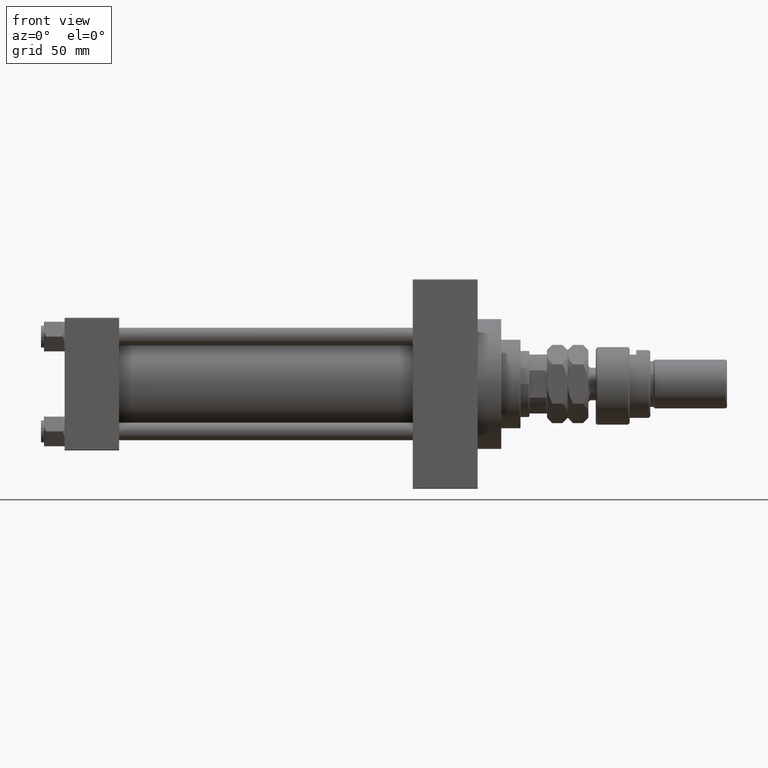
[diagram: clean part render]
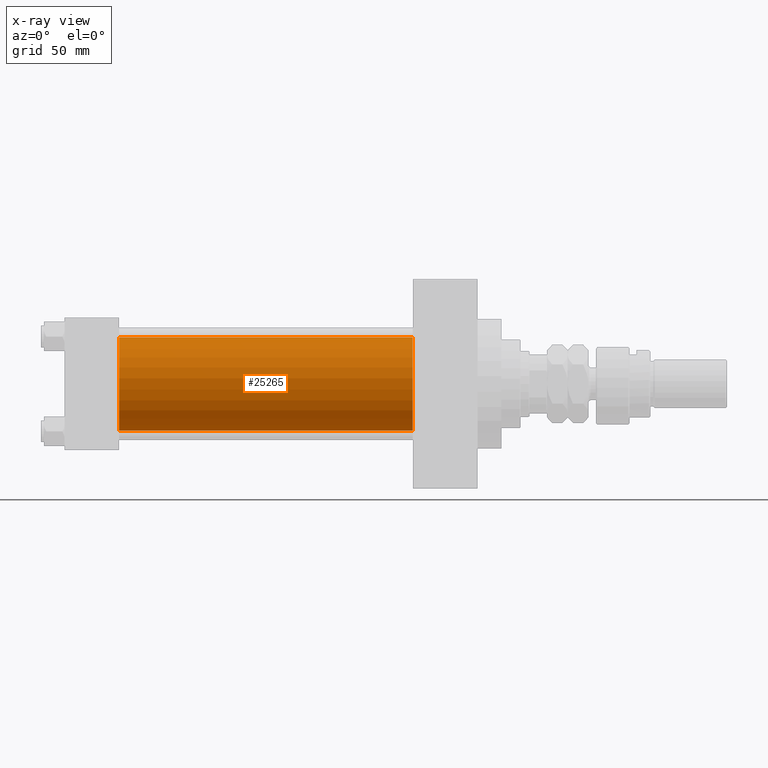
[diagram: x-ray — body ghosted, one internal face saturated and labeled with its STEP entity id]
A machine part, front view, then the same camera in x-ray: the body is ghosted and one INTERNAL B-rep face — a face not visible from any outside direction — is saturated and labeled: STEP entity #25265.
In plain terms, the highlighted cylindrical surface (partial cylindrical patch) has radius 31.5 mm, axis along (-1, -0, -0).
Its self-contained STEP definition (entity closure, byte-faithful):
#1260 = EDGE_LOOP ( 'NONE', ( #32473, #31428, #38758, #24523 ) ) ;
#2964 = CARTESIAN_POINT ( 'NONE',  ( 37.00000000000000000, -2.602085213965210642E-15, 0.000000000000000000 ) ) ;
#3073 = EDGE_CURVE ( 'NONE', #37259, #35841, #28065, .T. ) ;
#7121 = VECTOR ( 'NONE', #9968, 1000.000000000000000 ) ;
#7414 = CARTESIAN_POINT ( 'NONE',  ( 236.0000000000000284, 1.255552203348951850E-15, -31.50000000000000000 ) ) ;
#9712 = FACE_OUTER_BOUND ( 'NONE', #1260, .T. ) ;
#9968 = DIRECTION ( 'NONE',  ( -1.000000000000000000, -0.000000000000000000, -0.000000000000000000 ) ) ;
#10738 = VECTOR ( 'NONE', #24358, 1000.000000000000000 ) ;
#11798 = AXIS2_PLACEMENT_3D ( 'NONE', #25804, #42672, #21843 ) ;
#14350 = DIRECTION ( 'NONE',  ( 0.000000000000000000, 0.000000000000000000, -1.000000000000000000 ) ) ;
#16183 = CARTESIAN_POINT ( 'NONE',  ( 236.0000000000000284, 1.255552203348951850E-15, -31.50000000000000000 ) ) ;
#18403 = CYLINDRICAL_SURFACE ( 'NONE', #11798, 31.50000000000000000 ) ;
#19752 = AXIS2_PLACEMENT_3D ( 'NONE', #2964, #27262, #14350 ) ;
#21317 = VERTEX_POINT ( 'NONE', #23905 ) ;
#21843 = DIRECTION ( 'NONE',  ( 0.000000000000000000, 0.000000000000000000, 1.000000000000000000 ) ) ;
#23905 = CARTESIAN_POINT ( 'NONE',  ( 236.0000000000000284, -2.602085213965210642E-15, 31.50000000000000000 ) ) ;
#24358 = DIRECTION ( 'NONE',  ( -1.000000000000000000, -0.000000000000000000, -0.000000000000000000 ) ) ;
#24523 = ORIENTED_EDGE ( 'NONE', *, *, #39009, .F. ) ;
#25265 = ADVANCED_FACE ( 'NONE', ( #9712 ), #18403, .F. ) ;
#25804 = CARTESIAN_POINT ( 'NONE',  ( 236.0000000000000284, -2.602085213965210642E-15, 0.000000000000000000 ) ) ;
#27262 = DIRECTION ( 'NONE',  ( 1.000000000000000000, 0.000000000000000000, 0.000000000000000000 ) ) ;
#28065 = LINE ( 'NONE', #16183, #10738 ) ;
#30285 = CARTESIAN_POINT ( 'NONE',  ( 236.0000000000000284, -2.602085213965210642E-15, 31.50000000000000000 ) ) ;
#31428 = ORIENTED_EDGE ( 'NONE', *, *, #3073, .T. ) ;
#32473 = ORIENTED_EDGE ( 'NONE', *, *, #50842, .T. ) ;
#32582 = VERTEX_POINT ( 'NONE', #41209 ) ;
#35223 = EDGE_CURVE ( 'NONE', #32582, #35841, #48377, .T. ) ;
#35841 = VERTEX_POINT ( 'NONE', #48153 ) ;
#37259 = VERTEX_POINT ( 'NONE', #7414 ) ;
#38758 = ORIENTED_EDGE ( 'NONE', *, *, #35223, .F. ) ;
#38964 = CARTESIAN_POINT ( 'NONE',  ( 236.0000000000000284, -2.602085213965210642E-15, 0.000000000000000000 ) ) ;
#39009 = EDGE_CURVE ( 'NONE', #21317, #32582, #41375, .T. ) ;
#39493 = DIRECTION ( 'NONE',  ( 0.000000000000000000, 0.000000000000000000, -1.000000000000000000 ) ) ;
#41209 = CARTESIAN_POINT ( 'NONE',  ( 37.00000000000000000, -2.602085213965210642E-15, 31.50000000000000000 ) ) ;
#41375 = LINE ( 'NONE', #30285, #7121 ) ;
#42664 = DIRECTION ( 'NONE',  ( 1.000000000000000000, 0.000000000000000000, 0.000000000000000000 ) ) ;
#42672 = DIRECTION ( 'NONE',  ( -1.000000000000000000, -0.000000000000000000, -0.000000000000000000 ) ) ;
#42836 = CIRCLE ( 'NONE', #49596, 31.50000000000000000 ) ;
#48153 = CARTESIAN_POINT ( 'NONE',  ( 37.00000000000000000, 1.255552203348951850E-15, -31.50000000000000000 ) ) ;
#48377 = CIRCLE ( 'NONE', #19752, 31.50000000000000000 ) ;
#49596 = AXIS2_PLACEMENT_3D ( 'NONE', #38964, #42664, #39493 ) ;
#50842 = EDGE_CURVE ( 'NONE', #21317, #37259, #42836, .T. ) ;